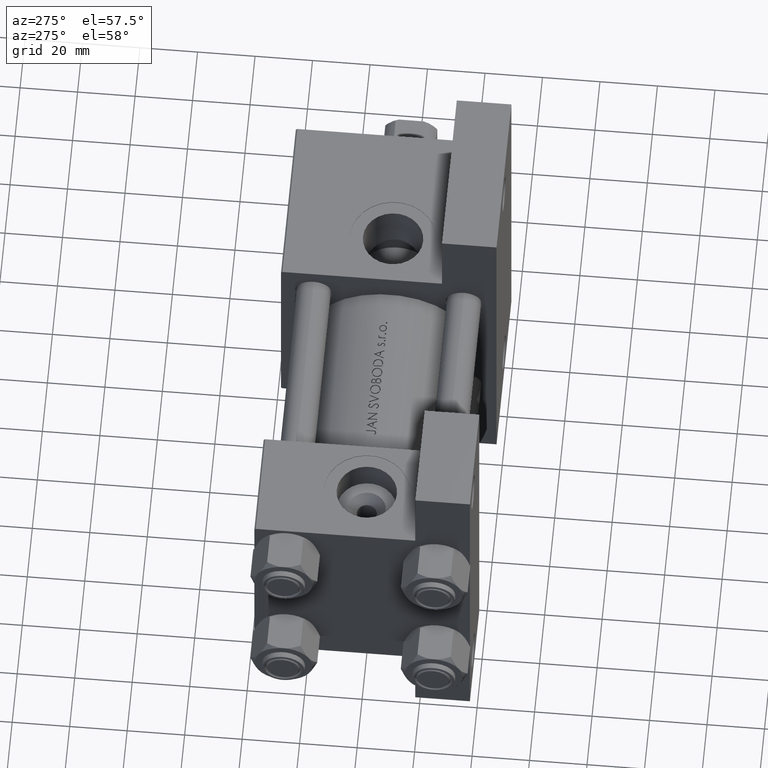
[diagram: clean part render]
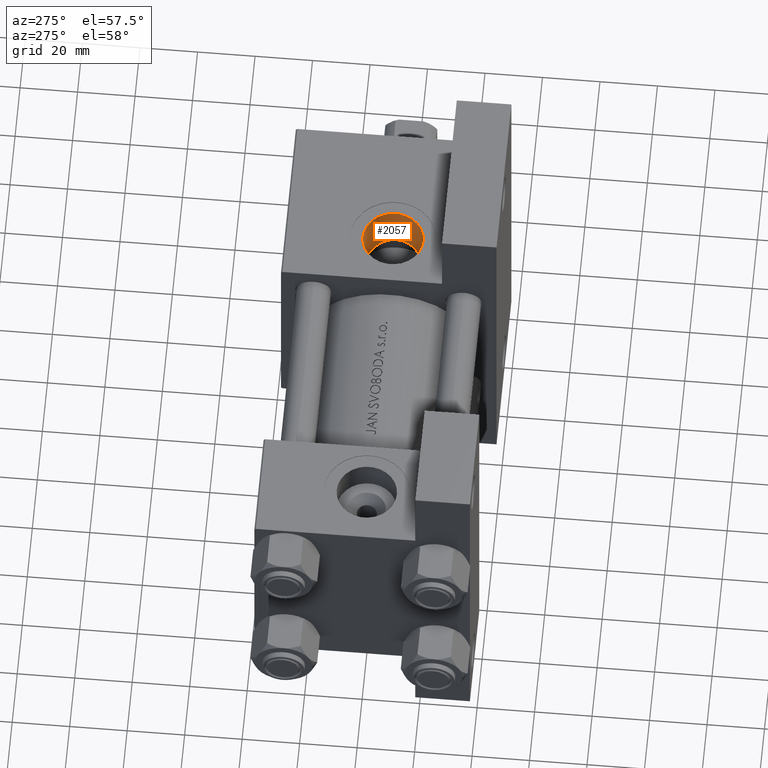
[diagram: same view with one face highlighted and labeled with its STEP entity id]
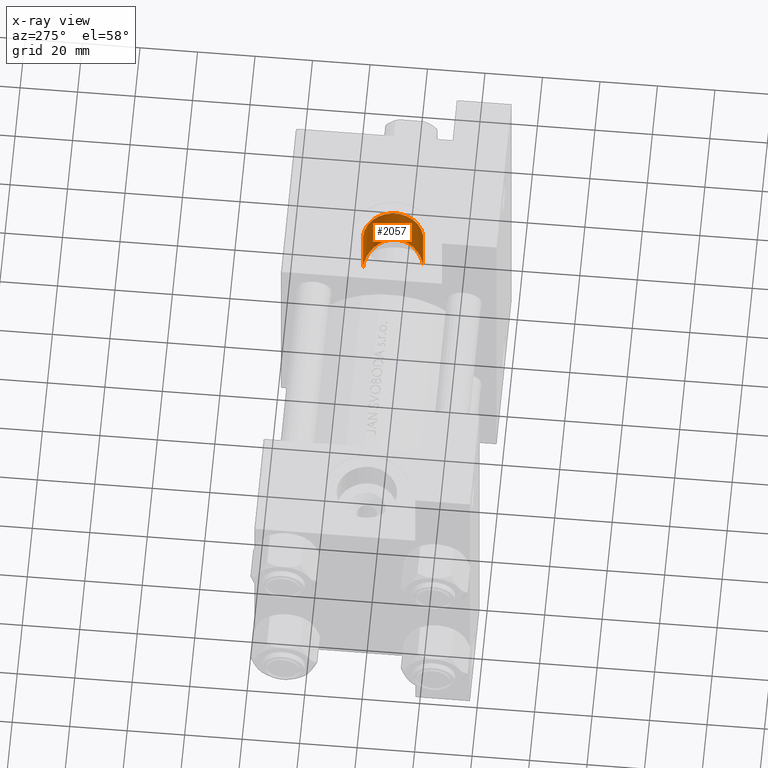
[diagram: x-ray of the same camera — body ghosted, the highlighted face saturated]
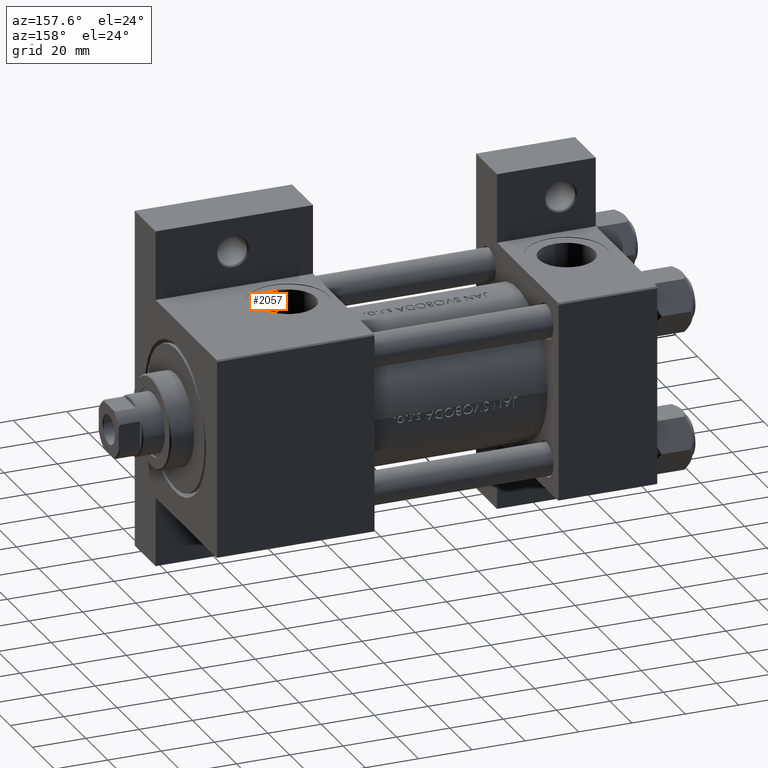
[diagram: same view with one face highlighted and labeled with its STEP entity id]
A machine part, auxiliary view. The second image highlights one B-rep face of the part: STEP entity #2057.
The next image is the same camera in x-ray: the body ghosted, the highlighted face saturated — about 0% of this face is hidden behind the body in this view.
A second angle (auxiliary view) of the same face is appended — the face is thin or edge-on in the first view.
In plain terms, the highlighted cylindrical surface (edge-blend (fillet) strip) has radius 10.48 mm, axis along (-0, -0, 1).
Its self-contained STEP definition (entity closure, byte-faithful):
#587 = CARTESIAN_POINT ( 'NONE',  ( 127.6848851208464453, -17.95378683072777903, 9.399761861338294722 ) ) ;
#1821 = CARTESIAN_POINT ( 'NONE',  ( 133.3852102648228595, -20.41012014665353291, 1.448585321858005148 ) ) ;
#2057 = ADVANCED_FACE ( 'NONE', ( #40465 ), #43947, .F. ) ;
#2062 = CARTESIAN_POINT ( 'NONE',  ( 131.5247630629396838, -19.72096722719661344, -6.105281524917121061 ) ) ;
#2309 = CARTESIAN_POINT ( 'NONE',  ( 130.6611621740133273, -19.38999619374664007, -7.159076384942110849 ) ) ;
#2544 = CARTESIAN_POINT ( 'NONE',  ( 125.7750123670571298, -18.09812027575557281, -10.12979723076934491 ) ) ;
#2605 = DIRECTION ( 'NONE',  ( -0.000000000000000000, -1.000000000000000000, -8.673617379884036705E-17 ) ) ;
#2796 = CARTESIAN_POINT ( 'NONE',  ( 129.9208345979154160, -18.70786800614510170, 7.898040897294865026 ) ) ;
#5549 = CARTESIAN_POINT ( 'NONE',  ( 132.0783182432222134, -19.94519646484592457, -5.247152792081117845 ) ) ;
#5704 = VERTEX_POINT ( 'NONE', #9150 ) ;
#6036 = CARTESIAN_POINT ( 'NONE',  ( 130.8913372837819509, -19.47582360453931116, -6.904560610471919269 ) ) ;
#6280 = CARTESIAN_POINT ( 'NONE',  ( 133.4819445000526628, -20.50178181377810560, -0.2822101851752939483 ) ) ;
#9150 = CARTESIAN_POINT ( 'NONE',  ( 123.0000000000000142, -37.29999999999999716, 10.48000000000000398 ) ) ;
#9269 = CARTESIAN_POINT ( 'NONE',  ( 133.3507038963579419, -20.46901633175582802, -1.677836523642081135 ) ) ;
#9510 = CARTESIAN_POINT ( 'NONE',  ( 129.4217440813015685, -18.95863385658995171, -8.309672003124306983 ) ) ;
#9752 = CARTESIAN_POINT ( 'NONE',  ( 131.9026386617618130, -19.87300753805846654, -5.539771893847130535 ) ) ;
#9886 = CARTESIAN_POINT ( 'NONE',  ( 123.0000000000000142, 37.50100000000000477, -10.47999999999998977 ) ) ;
#9904 = CARTESIAN_POINT ( 'NONE',  ( 123.0000000000000142, -37.29999999999999716, 3.486794186713383443E-15 ) ) ;
#13002 = CARTESIAN_POINT ( 'NONE',  ( 132.0415136392023499, -19.66186875787548516, 5.310054482731735526 ) ) ;
#13248 = CARTESIAN_POINT ( 'NONE',  ( 132.9485359727863454, -20.30891902702525442, -3.366903607565238765 ) ) ;
#13494 = CARTESIAN_POINT ( 'NONE',  ( 124.4044395936603991, -17.95581939429249729, -10.39141979412305616 ) ) ;
#13747 = CARTESIAN_POINT ( 'NONE',  ( 132.9112922687108096, -20.12166452589491783, 3.472274471029917375 ) ) ;
#16516 = CARTESIAN_POINT ( 'NONE',  ( 124.3951252308202839, -17.36667489365844830, 10.39267281819421740 ) ) ;
#17300 = DIRECTION ( 'NONE',  ( 0.000000000000000000, 0.000000000000000000, -1.000000000000000000 ) ) ;
#17480 = CARTESIAN_POINT ( 'NONE',  ( 123.3524141148301965, -17.90669148670408006, -10.47999999999999865 ) ) ;
#17978 = CARTESIAN_POINT ( 'NONE',  ( 133.4583245133797504, -20.46430137750835954, 0.7579182357777565215 ) ) ;
#18193 = VERTEX_POINT ( 'NONE', #28957 ) ;
#19463 = B_SPLINE_CURVE_WITH_KNOTS ( 'NONE', 3,
 ( #23982, #31938, #39173, #16516, #42169, #23236, #34696, #587, #24706, #29173, #2796, #40151, #32669, #21472, #13002, #36902, #28198, #13747, #39664, #33169, #1821, #17978, #43400, #6280, #24953, #44382, #9269, #24465, #13248, #20980, #43885, #5549, #9752, #2062, #36657, #6036, #2309, #20743, #9510, #25443, #47636, #36163, #2544, #35923, #13494, #39902, #17480, #21231 ),
 .UNSPECIFIED., .F., .F.,
 ( 4, 2, 2, 2, 2, 2, 2, 2, 2, 2, 2, 2, 2, 2, 2, 2, 2, 2, 2, 2, 2, 2, 2, 4 ),
 ( 0.03337172289375582579, 0.03441233523662733107, 0.03545294757949883635, 0.03753417226524183997, 0.03961539695098485053, 0.04169662163672785415, 0.04377784632247086472, 0.04481845866534237000, 0.04585907100821387528, 0.04794029569395691359, 0.04898090803682843275, 0.05002152037969995885, 0.05106213272257148494, 0.05210274506544300410, 0.05418396975118604242, 0.05522458209405754770, 0.05626519443692905992, 0.05730580677980056520, 0.05834641912267207742, 0.06042764380841503247, 0.06250886849415798752, 0.06459009317990095644, 0.06563070552277247560, 0.06667131786564399476 ),
 .UNSPECIFIED. ) ;
#20743 = CARTESIAN_POINT ( 'NONE',  ( 129.9416544847751993, -19.13207627753017448, -7.880695095096331926 ) ) ;
#20980 = CARTESIAN_POINT ( 'NONE',  ( 132.5516556862485231, -20.14238090880649779, -4.326202217588883236 ) ) ;
#21140 = DIRECTION ( 'NONE',  ( 0.000000000000000000, 0.000000000000000000, -1.000000000000000000 ) ) ;
#21231 = CARTESIAN_POINT ( 'NONE',  ( 123.0000000000000142, -17.90669148670407651, -10.47999999999999510 ) ) ;
#21472 = CARTESIAN_POINT ( 'NONE',  ( 131.8632463434475994, -19.57285682509593272, 5.602446212762900224 ) ) ;
#22042 = CARTESIAN_POINT ( 'NONE',  ( 123.0000000000000142, 37.50100000000000477, 10.48000000000000931 ) ) ;
#23236 = CARTESIAN_POINT ( 'NONE',  ( 125.7588417203787969, -17.52693762274573785, 10.13402779325158498 ) ) ;
#23982 = CARTESIAN_POINT ( 'NONE',  ( 123.0000000000000142, -17.31154528053460240, 10.48000000000000576 ) ) ;
#24465 = CARTESIAN_POINT ( 'NONE',  ( 133.1488622720015371, -20.39261420473474118, -2.705221023230760302 ) ) ;
#24617 = ORIENTED_EDGE ( 'NONE', *, *, #45642, .T. ) ;
#24706 = CARTESIAN_POINT ( 'NONE',  ( 128.2787600379286346, -18.12953982762252636, 9.078379935655670252 ) ) ;
#24953 = CARTESIAN_POINT ( 'NONE',  ( 133.4669051482524935, -20.50255402113293712, -0.6300211231001540124 ) ) ;
#25167 = EDGE_CURVE ( 'NONE', #36257, #27614, #19463, .T. ) ;
#25443 = CARTESIAN_POINT ( 'NONE',  ( 128.2983228447828594, -18.62849765410346592, -9.067371222007603038 ) ) ;
#27614 = VERTEX_POINT ( 'NONE', #38782 ) ;
#28198 = CARTESIAN_POINT ( 'NONE',  ( 132.5136165929028778, -19.90621515629138116, 4.408684660160870017 ) ) ;
#28502 = CARTESIAN_POINT ( 'NONE',  ( 123.0000000000000142, 37.50100000000000477, 9.974746723040443104E-15 ) ) ;
#28516 = DIRECTION ( 'NONE',  ( -0.000000000000000000, -1.000000000000000000, -8.673617379884036705E-17 ) ) ;
#28957 = CARTESIAN_POINT ( 'NONE',  ( 123.0000000000000142, -37.29999999999999716, -10.47999999999999687 ) ) ;
#29173 = CARTESIAN_POINT ( 'NONE',  ( 129.3953719826940301, -18.50579674927557861, 8.329556230503543546 ) ) ;
#29523 = EDGE_CURVE ( 'NONE', #27614, #18193, #44269, .T. ) ;
#29813 = EDGE_CURVE ( 'NONE', #36257, #5704, #40962, .T. ) ;
#31938 = CARTESIAN_POINT ( 'NONE',  ( 123.3470210746793470, -17.31154528053459529, 10.48000000000000576 ) ) ;
#31962 = VECTOR ( 'NONE', #28516, 1000.000000000000000 ) ;
#32669 = CARTESIAN_POINT ( 'NONE',  ( 131.2943842801270762, -19.29805340160767102, 6.441284550439736023 ) ) ;
#32963 = AXIS2_PLACEMENT_3D ( 'NONE', #28502, #2605, #17300 ) ;
#32966 = ORIENTED_EDGE ( 'NONE', *, *, #29523, .T. ) ;
#33169 = CARTESIAN_POINT ( 'NONE',  ( 133.3311065042815073, -20.37409322011633961, 1.794586109409261665 ) ) ;
#34344 = VECTOR ( 'NONE', #44013, 1000.000000000000000 ) ;
#34696 = CARTESIAN_POINT ( 'NONE',  ( 126.4159050215026241, -17.65012615064441803, 9.931528811289380698 ) ) ;
#35923 = CARTESIAN_POINT ( 'NONE',  ( 124.7534701870718976, -17.98521153983801923, -10.33810977386608165 ) ) ;
#36163 = CARTESIAN_POINT ( 'NONE',  ( 126.4291236246858574, -18.20648317701848740, -9.926633415679285477 ) ) ;
#36257 = VERTEX_POINT ( 'NONE', #42348 ) ;
#36657 = CARTESIAN_POINT ( 'NONE',  ( 131.3225662003738137, -19.64111042044597255, -6.378170050295207893 ) ) ;
#36902 = CARTESIAN_POINT ( 'NONE',  ( 132.3662177968320179, -19.82832408839748339, 4.713768309937352186 ) ) ;
#38782 = CARTESIAN_POINT ( 'NONE',  ( 123.0000000000000142, -17.90669148670407651, -10.47999999999999510 ) ) ;
#39173 = CARTESIAN_POINT ( 'NONE',  ( 123.6954312938288609, -17.32248566803109568, 10.46281023584332992 ) ) ;
#39664 = CARTESIAN_POINT ( 'NONE',  ( 133.1175830810126399, -20.24111318549747907, 2.820020607438590954 ) ) ;
#39902 = CARTESIAN_POINT ( 'NONE',  ( 123.7047145583874794, -17.91665127801143598, -10.46219065497901113 ) ) ;
#40052 = DIRECTION ( 'NONE',  ( 0.000000000000000000, -1.000000000000000000, -8.673617379884036705E-17 ) ) ;
#40151 = CARTESIAN_POINT ( 'NONE',  ( 130.8679744497729587, -19.10325731143032968, 6.954996736502858212 ) ) ;
#40465 = FACE_OUTER_BOUND ( 'NONE', #46973, .T. ) ;
#40603 = ORIENTED_EDGE ( 'NONE', *, *, #25167, .T. ) ;
#40962 = LINE ( 'NONE', #22042, #31962 ) ;
#41037 = CIRCLE ( 'NONE', #48184, 10.48000000000000043 ) ;
#42169 = CARTESIAN_POINT ( 'NONE',  ( 124.7410054315663501, -17.39963274831549711, 10.34017078318250604 ) ) ;
#42348 = CARTESIAN_POINT ( 'NONE',  ( 123.0000000000000142, -17.31154528053460240, 10.48000000000000576 ) ) ;
#43400 = CARTESIAN_POINT ( 'NONE',  ( 133.4776551375226177, -20.48265569949338172, 0.4117595292702515564 ) ) ;
#43885 = CARTESIAN_POINT ( 'NONE',  ( 132.4025389929008725, -20.07976061505708998, -4.641199740976987620 ) ) ;
#43947 = CYLINDRICAL_SURFACE ( 'NONE', #32963, 10.48000000000000043 ) ;
#44013 = DIRECTION ( 'NONE',  ( -0.000000000000000000, -1.000000000000000000, -8.673617379884036705E-17 ) ) ;
#44269 = LINE ( 'NONE', #9886, #34344 ) ;
#44382 = CARTESIAN_POINT ( 'NONE',  ( 133.4015008588858393, -20.48626732390679805, -1.327331865308755576 ) ) ;
#45507 = ORIENTED_EDGE ( 'NONE', *, *, #29813, .F. ) ;
#45642 = EDGE_CURVE ( 'NONE', #18193, #5704, #41037, .T. ) ;
#46973 = EDGE_LOOP ( 'NONE', ( #45507, #40603, #32966, #24617 ) ) ;
#47636 = CARTESIAN_POINT ( 'NONE',  ( 127.6885837709134961, -18.47081169218748187, -9.397559365377071927 ) ) ;
#48184 = AXIS2_PLACEMENT_3D ( 'NONE', #9904, #40052, #21140 ) ;